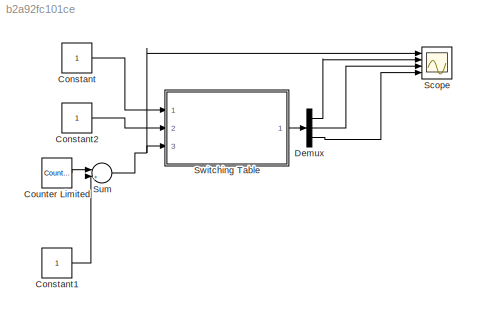
MODEL slx_b2a92fc101ce
KIND model
CONFIG AbsTol = auto
CONFIG FixedStep = auto
CONFIG MaxStep = auto
CONFIG MinStep = auto
CONFIG RelTol = 1e-3
CONFIG SampleTimeConstraint = Unconstrained
CONFIG Solver = ode45
CONFIG SolverMode = Auto
CONFIG SolverName = ode45
CONFIG StartTime = 0.0
CONFIG StopTime = 10.0
BLOCK [Constant] Constant
BLOCK [Constant] Constant1
BLOCK [Constant] Constant2
BLOCK [Reference] Counter Limited  REF=simulink/Sources/Counter
Limited
  Ports = [0, 1]
  SourceBlock = simulink/Sources/Counter\nLimited
  SourceType = Counter Limited
  tsamp = -1
  uplimit = 11
BLOCK [Demux] Demux
  DisplayOption = bar
  Outputs = 3
  Ports = [1, 3]
BLOCK [Scope] Scope
  Floating = off
  NumInputPorts = 4
  Ports = [4]
  YMax = 12~1~1~1
  YMin = 0~0~0~0
BLOCK [Sum] Sum
  IconShape = round
  InputSameDT = off
  Inputs = |++
  OutDataTypeStr = Inherit: Inherit via internal rule
  Ports = [2, 1]
  SaturateOnIntegerOverflow = off
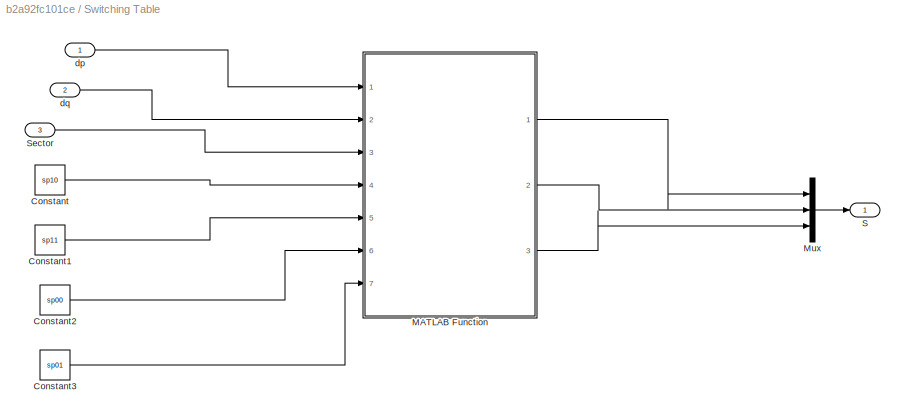
BLOCK [SubSystem] Switching Table 
  Ports = [3, 1]
  RequestExecContextInheritance = off
BLOCK [Constant] Switching Table /Constant
  Value = sp10
BLOCK [Constant] Switching Table /Constant1
  Value = sp11
BLOCK [Constant] Switching Table /Constant2
  Value = sp00
BLOCK [Constant] Switching Table /Constant3
  Value = sp01
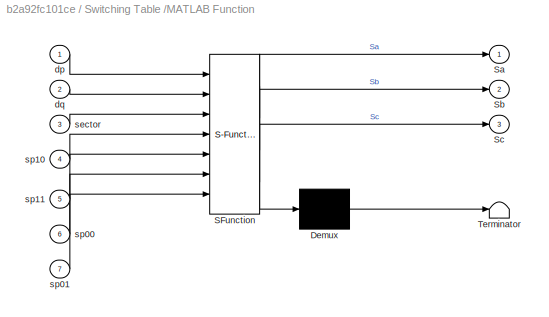
BLOCK [SubSystem] Switching Table /MATLAB Function
  ErrorFcn = Stateflow.Translate.translate
  PermitHierarchicalResolution = ExplicitOnly
  Ports = [7, 3]
  RequestExecContextInheritance = off
  SFBlockType = MATLAB Function
  TreatAsAtomicUnit = on
BLOCK [Demux] Switching Table /MATLAB Function/ Demux 
  Outputs = 1
  Ports = [1, 1]
BLOCK [S-Function] Switching Table /MATLAB Function/ SFunction 
  EnableBusSupport = on
  FunctionName = sf_sfun
  PortCounts = [7 4]
  Ports = [7, 4]
  Tag = Stateflow S-Function switching_table 1
BLOCK [Terminator] Switching Table /MATLAB Function/ Terminator 
BLOCK [Outport] Switching Table /MATLAB Function/Sa
  IconDisplay = Port number
BLOCK [Outport] Switching Table /MATLAB Function/Sb
  IconDisplay = Port number
  Port = 2
BLOCK [Outport] Switching Table /MATLAB Function/Sc
  IconDisplay = Port number
  Port = 3
BLOCK [Inport] Switching Table /MATLAB Function/dp
  IconDisplay = Port number
BLOCK [Inport] Switching Table /MATLAB Function/dq
  IconDisplay = Port number
  Port = 2
BLOCK [Inport] Switching Table /MATLAB Function/sector
  IconDisplay = Port number
  Port = 3
BLOCK [Inport] Switching Table /MATLAB Function/sp00
  IconDisplay = Port number
  Port = 6
BLOCK [Inport] Switching Table /MATLAB Function/sp01
  IconDisplay = Port number
  Port = 7
BLOCK [Inport] Switching Table /MATLAB Function/sp10
  IconDisplay = Port number
  Port = 4
BLOCK [Inport] Switching Table /MATLAB Function/sp11
  IconDisplay = Port number
  Port = 5
BLOCK [Mux] Switching Table /Mux
  DisplayOption = bar
  Inputs = 3
  Ports = [3, 1]
BLOCK [Outport] Switching Table /S
  IconDisplay = Port number
BLOCK [Inport] Switching Table /Sector 
  IconDisplay = Port number
  Port = 3
BLOCK [Inport] Switching Table /dp
  IconDisplay = Port number
BLOCK [Inport] Switching Table /dq
  IconDisplay = Port number
  Port = 2
LINE Constant1:1 -> Sum:2
LINE Constant2:1 -> Switching Table :2
LINE Constant:1 -> Switching Table :1
LINE Counter Limited:1 -> Sum:1
LINE Demux:1 -> Scope:2
LINE Demux:2 -> Scope:3
LINE Demux:3 -> Scope:4
NET Sum:1 -> Scope:1, Switching Table :3
LINE Switching Table /Constant1:1 -> Switching Table /MATLAB Function:5
LINE Switching Table /Constant2:1 -> Switching Table /MATLAB Function:6
LINE Switching Table /Constant3:1 -> Switching Table /MATLAB Function:7
LINE Switching Table /Constant:1 -> Switching Table /MATLAB Function:4
LINE Switching Table /MATLAB Function:1 -> Switching Table /Mux:1
LINE Switching Table /MATLAB Function:2 -> Switching Table /Mux:2
LINE Switching Table /MATLAB Function:3 -> Switching Table /Mux:3
LINE Switching Table /Mux:1 -> Switching Table /S:1
LINE Switching Table /Sector :1 -> Switching Table /MATLAB Function:3
LINE Switching Table /dp:1 -> Switching Table /MATLAB Function:1
LINE Switching Table /dq:1 -> Switching Table /MATLAB Function:2
LINE Switching Table :1 -> Demux:1
note: NET lines group one-source signal fan-out (src -> all destinations, sorted); 1:1 wires keep LINE
CHART Switching Table
/MATLAB Function states=1 transitions=1
  STATE_LABEL 'eML_blk_kernel()'
  STATE_LABEL "SCRIPT:\nfunction [Sa,Sb,Sc] = switch_selector(dp,dq,sector,sp10,sp11,sp00,sp01)\n%#codegen\n% global sp10 sp11 sp00 sp01\n% \n% sp10= load('sp10.mat') ; \n% sp11=load('sp11.mat'); \n% sp00=load('sp00.mat');\n% sp01 =load('sp01.mat'); \n%persistent Sa Sb Sc  \nSa= 0 ; \nSb = 0 ; \nSc = 0 ; \n\nswitch dp\n    case 1 \n        switch dq\n            case 0 \n                Sa=sp10(sector,1) ; \n                Sb=sp1...<+513ch>"
